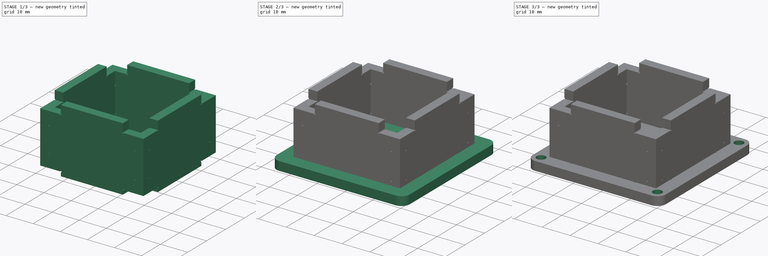
[diagram: build sequence overview — one tinted view per stage of 3, left to right]
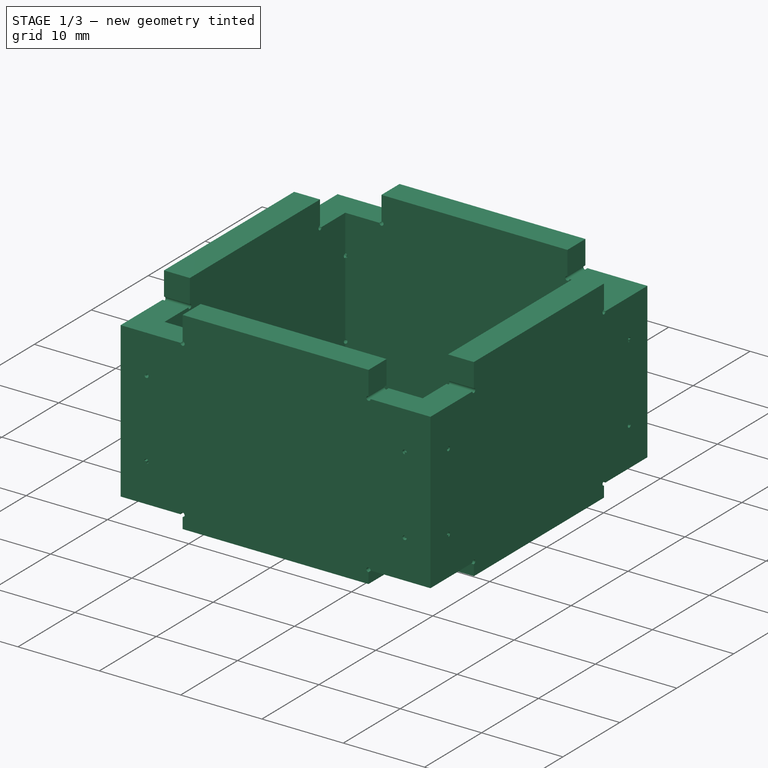
[diagram: stage 1 of 3 — iso view after this stage's code; geometry added in this stage tinted green]
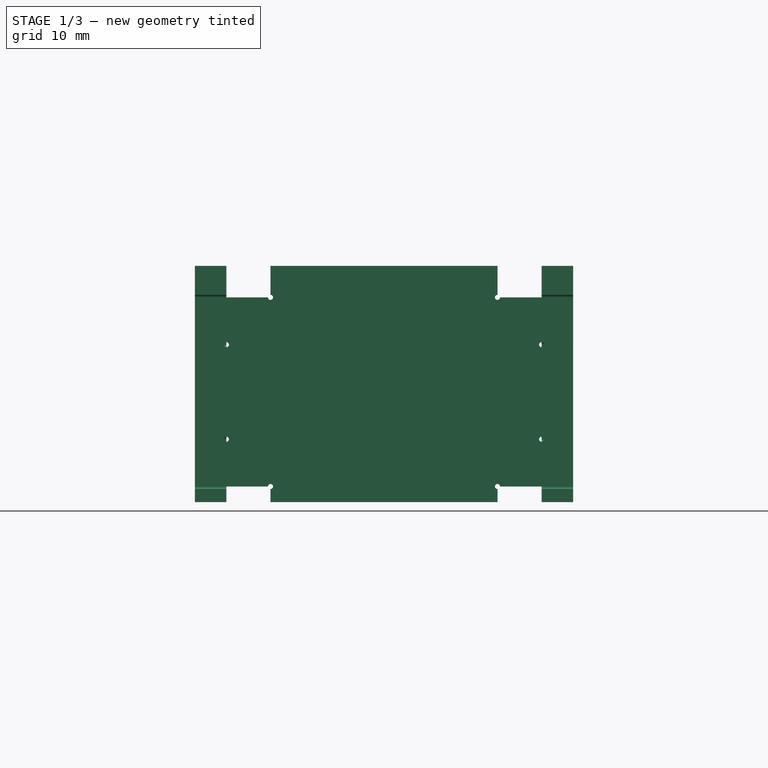
[diagram: stage 1 of 3 — front view after this stage's code; geometry added in this stage tinted green]
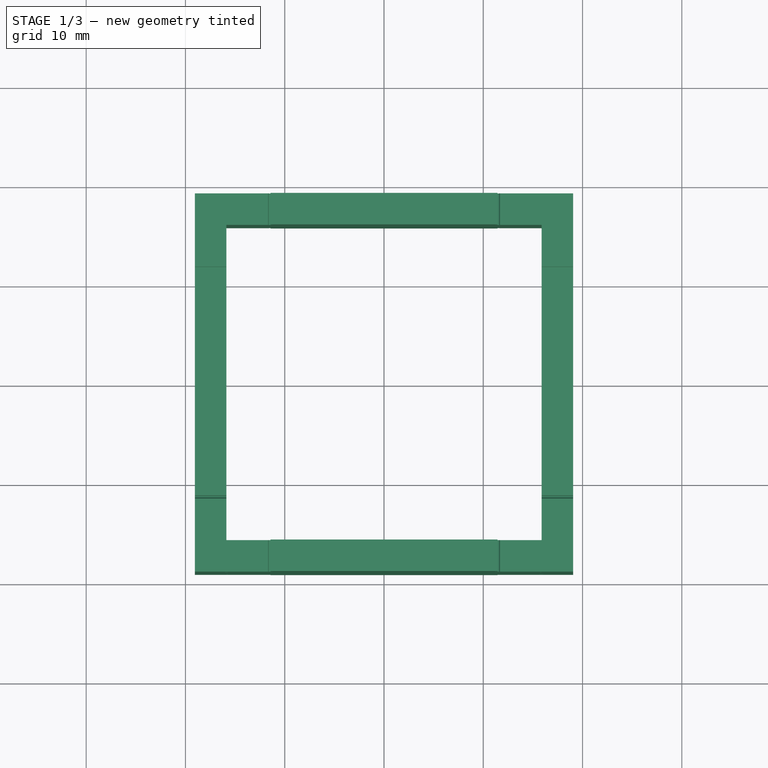
[diagram: stage 1 of 3 — top view after this stage's code; geometry added in this stage tinted green]
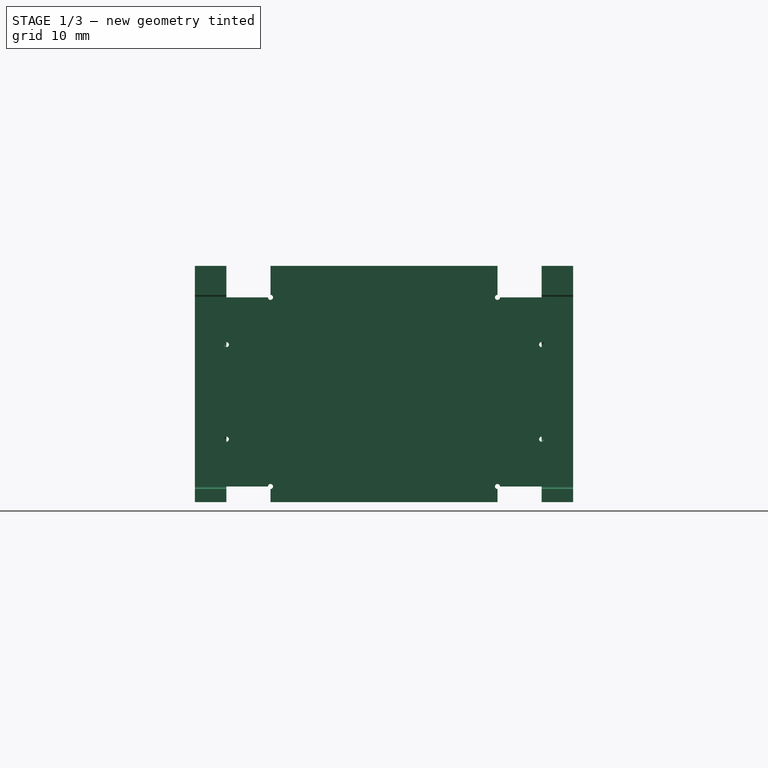
[diagram: stage 1 of 3 — right view after this stage's code; geometry added in this stage tinted green]
FCSTD DOCUMENT  (FreeCAD 1.0R38641 +468 (Git))
Label: cx210-cover-1
License: All rights reserved
objects: Sketcher::SketchObject×3, PartDesign::Pad×2, PartDesign::Body×2, Spreadsheet::Sheet×1, PartDesign::Pocket×1, PartDesign::PolarPattern×1, Part::FeaturePython×1
note: 20 computed .brp shape members not serialized (recipe doc carries the construction recipe); baked Part::Feature solids carry a one-line shape summary decoded from their .brp

FEATURE [PartDesign::Body] Body
  AllowCompound = false
  Group = -> [Sketch,Pad,Sketch001,Pocket,PolarPattern]
  Origin = -> Origin
  Placement = pos=(0,0,19.05) rot=(0,0,1;0rad)
  Tip = -> PolarPattern
  expr: .Placement.Base.z = <<Master>>.height - <<Master>>.thick
FEATURE [Sketcher::SketchObject] Sketch002
  ArcFitTolerance = 0
  AttachmentSupport = -> [XZ_Plane001]
  FullyConstrained = true
  MakeInternals = false
  MapMode = 5
  Placement = pos=(0,0,0) rot=(1,0,0;1.5708rad)
  expr: Constraints[118] = <<Master>>.tab_top
  expr: Constraints[119] = <<Master>>.box_sq
  expr: Constraints[120] = <<Master>>.thick
  expr: Constraints[121] = <<Master>>.height - <<Master>>.thick
  expr: Constraints[131] = <<Master>>.tab_side
  expr: Constraints[47] = <<Master>>.releif
  sketch-geometry (49):
    g0: LineSegment StartX=19.05 StartY=19.05 StartZ=0 EndX=11.684 EndY=19.05 EndZ=0
    g1: LineSegment StartX=-15.875 StartY=19.05 StartZ=0 EndX=-15.875 EndY=14.5415 EndZ=0
    g2: LineSegment StartX=-16.129 StartY=14.2875 StartZ=0 EndX=-19.05 EndY=14.2875 EndZ=0
    g3: LineSegment StartX=-19.05 StartY=14.2875 StartZ=0 EndX=-19.05 EndY=4.7625 EndZ=0
    g4: LineSegment StartX=-19.05 StartY=4.7625 StartZ=0 EndX=-16.129 EndY=4.7625 EndZ=0
    g5: LineSegment StartX=-15.875 StartY=4.5085 StartZ=0 EndX=-15.875 EndY=9.68e-14 EndZ=0
    g6: LineSegment StartX=11.684 StartY=9.66e-14 StartZ=0 EndX=19.05 EndY=9.66e-14 EndZ=0
    g7: LineSegment StartX=19.05 StartY=9.66e-14 StartZ=0 EndX=19.05 EndY=4.7625 EndZ=0
    g8: LineSegment StartX=19.05 StartY=4.7625 StartZ=0 EndX=16.129 EndY=4.7625 EndZ=0
    g9: LineSegment StartX=15.875 StartY=5.0165 StartZ=0 EndX=15.875 EndY=14.0335 EndZ=0
    g10: LineSegment StartX=16.129 StartY=14.2875 StartZ=0 EndX=19.05 EndY=14.2875 EndZ=0
    g11: LineSegment StartX=19.05 StartY=14.2875 StartZ=0 EndX=19.05 EndY=19.05 EndZ=0
    g12: LineSegment StartX=-11.43 StartY=-0.254 StartZ=0 EndX=-11.43 EndY=-1.5748 EndZ=0
    g13: LineSegment StartX=-11.43 StartY=-1.5748 StartZ=0 EndX=11.43 EndY=-1.5748 EndZ=0
    g14: LineSegment StartX=11.43 StartY=-1.5748 StartZ=0 EndX=11.43 EndY=-0.254 EndZ=0
    g15: LineSegment StartX=-11.43 StartY=19.304 StartZ=0 EndX=-11.43 EndY=22.225 EndZ=0
    g16: LineSegment StartX=-11.43 StartY=22.225 StartZ=0 EndX=11.43 EndY=22.225 EndZ=0
    g17: LineSegment StartX=11.43 StartY=22.225 StartZ=0 EndX=11.43 EndY=19.304 EndZ=0
    g18: LineSegment StartX=-15.875 StartY=19.05 StartZ=0 EndX=-11.684 EndY=19.05 EndZ=0
    g19: LineSegment StartX=-15.875 StartY=9.66e-14 StartZ=0 EndX=-11.684 EndY=9.66e-14 EndZ=0
    g20: ArcOfCircle CenterX=-15.875 CenterY=14.2875 CenterZ=0 NormalX=0 NormalY=0 NormalZ=1 AngleXU=0 Radius=0.254 StartAngle=3.14159 EndAngle=7.85398
    g21: ArcOfCircle CenterX=-11.43 CenterY=19.05 CenterZ=0 NormalX=0 NormalY=0 NormalZ=1 AngleXU=0 Radius=0.254 StartAngle=3.14159 EndAngle=7.85398
    g22: ArcOfCircle CenterX=11.43 CenterY=19.05 CenterZ=0 NormalX=0 NormalY=0 NormalZ=1 AngleXU=0 Radius=0.254 StartAngle=1.5708 EndAngle=6.28319
    g23: ArcOfCircle CenterX=15.875 CenterY=14.2875 CenterZ=0 NormalX=0 NormalY=0 NormalZ=1 AngleXU=0 Radius=0.254 StartAngle=0 EndAngle=4.71239
    g24: ArcOfCircle CenterX=-15.875 CenterY=4.7625 CenterZ=0 NormalX=0 NormalY=0 NormalZ=1 AngleXU=0 Radius=0.254 StartAngle=4.71239 EndAngle=9.42478
    g25: ArcOfCircle CenterX=-11.43 CenterY=9.66e-14 CenterZ=0 NormalX=0 NormalY=0 NormalZ=1 AngleXU=0 Radius=0.254 StartAngle=4.71239 EndAngle=9.42478
    g26: ArcOfCircle CenterX=15.875 CenterY=4.7625 CenterZ=0 NormalX=0 NormalY=0 NormalZ=1 AngleXU=0 Radius=0.254 StartAngle=1.5708 EndAngle=6.28319
    g27: ArcOfCircle CenterX=11.43 CenterY=9.66e-14 CenterZ=0 NormalX=0 NormalY=0 NormalZ=1 AngleXU=0 Radius=0.254 StartAngle=0 EndAngle=4.71239
    g28: LineSegment [constr] StartX=-15.875 StartY=14.2875 StartZ=0 EndX=-15.875 EndY=14.5415 EndZ=0
    g29: LineSegment [constr] StartX=-16.129 StartY=14.2875 StartZ=0 EndX=-15.875 EndY=14.2875 EndZ=0
    g30: LineSegment [constr] StartX=-11.684 StartY=19.05 StartZ=0 EndX=-11.43 EndY=19.05 EndZ=0
    g31: LineSegment [constr] StartX=-11.43 StartY=19.304 StartZ=0 EndX=-11.43 EndY=19.05 EndZ=0
    g32: LineSegment [constr] StartX=11.43 StartY=19.05 StartZ=0 EndX=11.43 EndY=19.304 EndZ=0
    g33: LineSegment [constr] StartX=11.43 StartY=19.05 StartZ=0 EndX=11.684 EndY=19.05 EndZ=0
    g34: LineSegment [constr] StartX=15.875 StartY=14.2875 StartZ=0 EndX=16.129 EndY=14.2875 EndZ=0
    g35: LineSegment [constr] StartX=15.875 StartY=5.0165 StartZ=0 EndX=15.875 EndY=4.7625 EndZ=0
    g36: LineSegment [constr] StartX=15.875 StartY=4.7625 StartZ=0 EndX=16.129 EndY=4.7625 EndZ=0
    g37: LineSegment [constr] StartX=11.43 StartY=9.66e-14 StartZ=0 EndX=11.684 EndY=9.66e-14 EndZ=0
    g38: LineSegment [constr] StartX=11.43 StartY=9.66e-14 StartZ=0 EndX=11.43 EndY=-0.254 EndZ=0
    g39: LineSegment [constr] StartX=-16.129 StartY=4.7625 StartZ=0 EndX=-15.875 EndY=4.7625 EndZ=0
    g40: LineSegment [constr] StartX=-15.875 StartY=4.7625 StartZ=0 EndX=-15.875 EndY=4.5085 EndZ=0
    g41: LineSegment [constr] StartX=-11.684 StartY=9.66e-14 StartZ=0 EndX=-11.43 EndY=9.66e-14 EndZ=0
    g42: LineSegment [constr] StartX=-11.43 StartY=9.66e-14 StartZ=0 EndX=-11.43 EndY=-0.254 EndZ=0
    g43: LineSegment [constr] StartX=-11.43 StartY=19.05 StartZ=0 EndX=11.43 EndY=19.05 EndZ=0
    g44: LineSegment [constr] StartX=-15.875 StartY=14.2875 StartZ=0 EndX=-15.875 EndY=4.7625 EndZ=0
    g45: LineSegment [constr] StartX=-15.875 StartY=4.7625 StartZ=0 EndX=15.875 EndY=4.7625 EndZ=0
    g46: LineSegment [constr] StartX=-11.43 StartY=9.66e-14 StartZ=0 EndX=11.43 EndY=9.66e-14 EndZ=0
    g47: LineSegment [constr] StartX=15.875 StartY=14.2875 StartZ=0 EndX=15.875 EndY=14.0335 EndZ=0
    g48: LineSegment [constr] StartX=-15.875 StartY=14.2875 StartZ=0 EndX=15.875 EndY=14.2875 EndZ=0
  constraints (132):
    c: Horizontal(g0)
    c: Vertical(g1)
    c: Horizontal(g2)
    c: Coincident(g2,g3)
    c: Vertical(g3)
    c: Coincident(g3,g4)
    c: Vertical(g5)
    c: Horizontal(g6)
    c: Coincident(g6,g7)
    c: Vertical(g7)
    c: Coincident(g7,g8)
    c: Horizontal(g8)
    c: Vertical(g9)
    c: Coincident(g10,g11)
    c: Coincident(g11,g0)
    c: Vertical(g11)
    c: Horizontal(g4)
    c: Horizontal(g10)
    c: Vertical(g12)
    c: Coincident(g12,g13)
    c: Coincident(g13,g14)
    c: Vertical(g14)
    c: Vertical(g15)
    c: Coincident(g15,g16)
    c: Horizontal(g16)
    c: Coincident(g16,g17)
    c: Coincident(g18,g1)
    c: Horizontal(g18)
    c: Coincident(g19,g5)
    c: Horizontal(g19)
    c: Vertical(g17)
    c: Coincident(g2,g20)
    c: Coincident(g1,g20)
    c: Coincident(g28,g1)
    c: Coincident(g20,g28)
    c: Coincident(g29,g2)
    c: Coincident(g29,g20)
    c: Horizontal(g29)
    c: Vertical(g28)
    c: Coincident(g18,g21)
    c: Coincident(g15,g21)
    c: Coincident(g30,g18)
    c: Coincident(g30,g21)
    c: Horizontal(g30)
    c: Coincident(g31,g15)
    c: Coincident(g31,g21)
    c: Vertical(g31)
    c: Radius(g20) = 0.254
    c: Equal(g20,g21)
    c: Equal(g21,g22)
    c: Equal(g22,g23)
    c: Equal(g23,g24)
    c: Equal(g24,g25)
    c: Equal(g25,g26)
    c: Equal(g26,g27)
    c: Coincident(g0,g22)
    c: Coincident(g17,g22)
    c: Coincident(g10,g23)
    c: Coincident(g8,g26)
    c: Coincident(g9,g26)
    c: Coincident(g6,g27)
    c: Coincident(g5,g24)
    c: Coincident(g4,g24)
    c: Coincident(g19,g25)
    c: Coincident(g12,g25)
    c: Coincident(g32,g22)
    c: Coincident(g32,g17)
    c: Vertical(g32)
    c: Coincident(g33,g22)
    c: Coincident(g33,g0)
    c: Horizontal(g33)
    c: Coincident(g34,g23)
    c: Coincident(g34,g10)
    c: Horizontal(g34)
    c: Coincident(g35,g9)
    c: Coincident(g35,g26)
    c: Vertical(g35)
    c: Coincident(g36,g8)
    c: Horizontal(g36)
    c: Coincident(g36,g26)
    c: Coincident(g37,g27)
    c: Coincident(g37,g6)
    c: Horizontal(g37)
    c: Coincident(g38,g27)
    c: Coincident(g38,g14)
    c: Vertical(g38)
    c: Coincident(g39,g4)
    c: Coincident(g39,g24)
    c: Horizontal(g39)
    c: Coincident(g40,g24)
    c: Coincident(g40,g5)
    c: Vertical(g40)
    c: Coincident(g41,g19)
    c: Coincident(g41,g25)
    c: Horizontal(g41)
    c: Coincident(g42,g25)
    c: Coincident(g42,g12)
    c: Vertical(g42)
    c: Coincident(g43,g21)
    c: Coincident(g43,g22)
    c: Horizontal(g43)
    c: Coincident(g44,g20)
    c: Vertical(g44)
    c: Coincident(g24,g44)
    c: Coincident(g45,g24)
    c: Coincident(g45,g26)
    c: Coincident(g46,g25)
    c: Coincident(g46,g27)
    c: Horizontal(g46)
    c: Coincident(g14,g27)
    c: Equal(g18,g19)
    c: Equal(g10,g8)
    c: Equal(g6,g0)
    c: Equal(g10,g2)
    c: Equal(g17,g10)
    c: Symmetric(g13,g12,g-2)
    c: Equal(g11,g7)
    c: PointOnObject(g-1,g46)
    c: DistanceX(g13) = 22.86
    c: DistanceX(g3,g6) = 38.1
    c: DistanceX(g3,g5) = 3.175
    c: DistanceY(g6,g0) = 19.05
    c: Symmetric(g3,g7,g-2)
    c: DistanceY(g13,g6) = 1.5748
    c: Coincident(g47,g23)
    c: Coincident(g47,g23)
    c: Vertical(g47)
    c: Coincident(g9,g23)
    c: Coincident(g48,g20)
    c: Horizontal(g48)
    c: Coincident(g48,g23)
    c: DistanceY(g3,g3) = 9.525
FEATURE [PartDesign::Pad] Pad001
  Direction = (0,-1,2e-16)
  Length = 3.175
  Length2 = 10
  Placement = pos=(0,0,0) rot=(1,0,0;1.5708rad)
  Profile = -> Sketch002
  ReferenceAxis = -> Sketch002 [N_Axis]
  Suppressed = false
  Type = 0
  expr: Length = <<Master>>.thick
FEATURE [PartDesign::Body] Body001
  AllowCompound = false
  Group = -> [Sketch002,Pad001]
  Origin = -> Origin001
  Placement = pos=(0,-15.875,0) rot=(0,0,1;0rad)
  Tip = -> Pad001
  expr: .Placement.Base.y = -(<<Master>>.box_sq / 2 - <<Master>>.thick)
FEATURE [Part::FeaturePython] Array  # Draft array (typed FeaturePython)
  Angle = 360
  ArrayType = 1
  Axis = (0,0,1)
  Base = -> Body001
  Center = (0,0,0)
  Count = 4
  Fuse = false
  IntervalAxis = (0,0,0)
  IntervalX = (50,0,0)
  IntervalY = (0,50,0)
  IntervalZ = (0,0,50)
  NumberCircles = 3
  NumberPolar = 4
  NumberX = 2
  NumberY = 2
  NumberZ = 1
  RadialDistance = 50
  Symmetry = 1
  TangentialDistance = 25
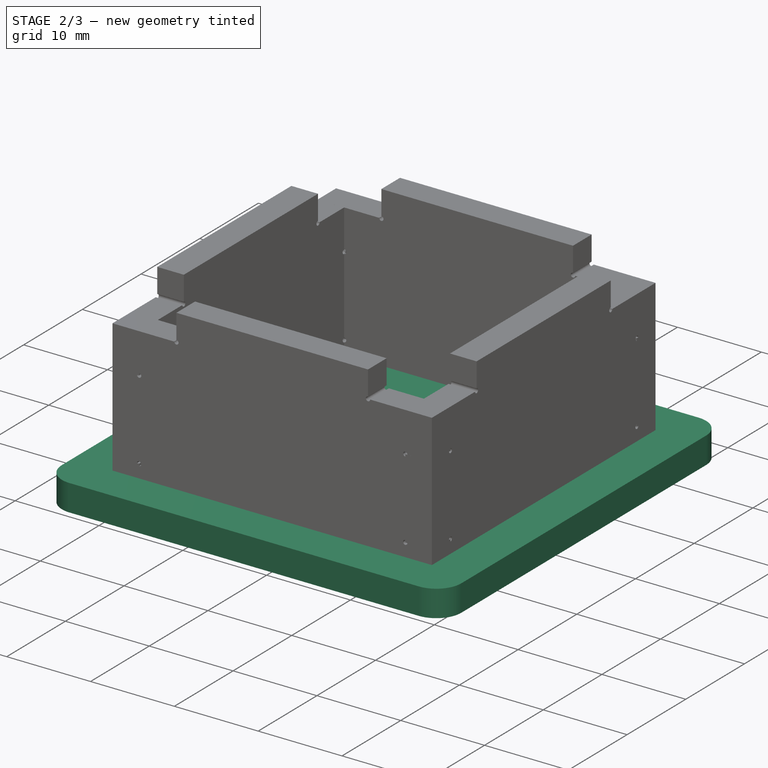
[diagram: stage 2 of 3 — iso view after this stage's code; geometry added in this stage tinted green]
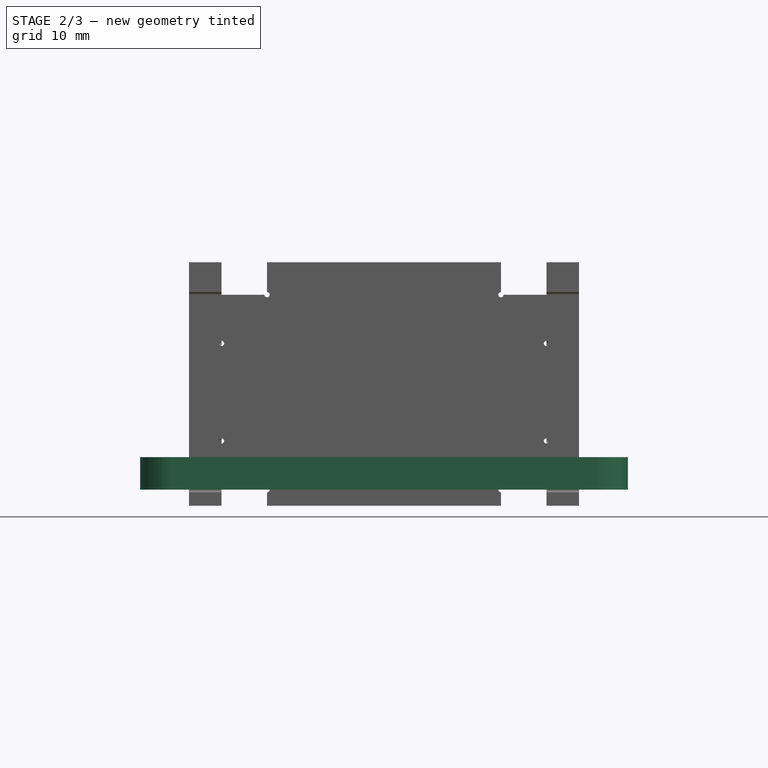
[diagram: stage 2 of 3 — front view after this stage's code; geometry added in this stage tinted green]
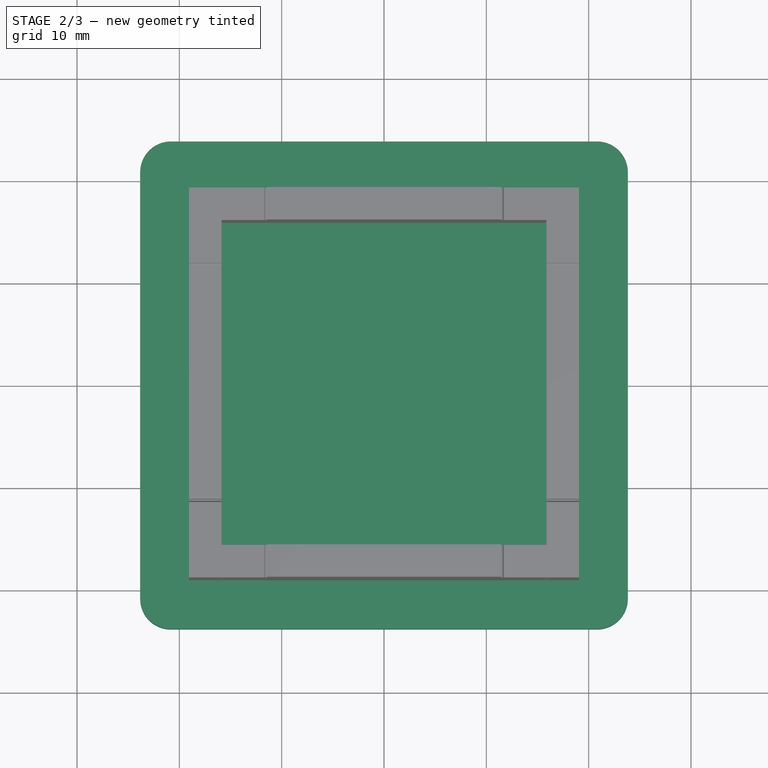
[diagram: stage 2 of 3 — top view after this stage's code; geometry added in this stage tinted green]
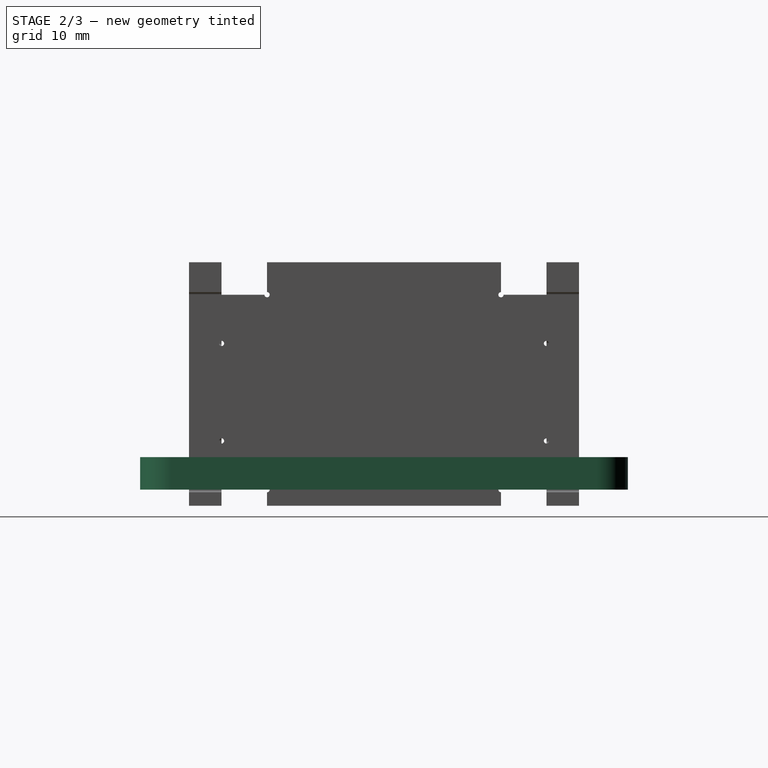
[diagram: stage 2 of 3 — right view after this stage's code; geometry added in this stage tinted green]
FEATURE [Spreadsheet::Sheet] Spreadsheet  label="Master"
  cells = A1='Constants; A2='top square; B2(top_sq)==47.656 mm; C2='Top cover square; A3='height; B3(height)==22.225 mm; C3='Height of box; A4='box square; B4(box_sq)==38.1 mm; C4='Size of box (external dim); A5='thick; B5(thick)==3.175 mm; C5='Acrylic thickness; A6='tab top; B6(tab_top)==22.86 mm; C6='Top/bottom tab length; A7='tab side; B7(tab_side)==9.525 mm; C7='Side tab length; A8='relief; B8(releif)==0.254 mm; C8='Inside corner relief radius; A9='mnt square; B9(mnt_sq)==41.656 mm; C9='Mounting hole square; A11='Calculated
FEATURE [Sketcher::SketchObject] Sketch
  ArcFitTolerance = 1e-06
  AttachmentSupport = -> [XY_Plane]
  FullyConstrained = true
  MakeInternals = false
  MapMode = 5
  expr: Constraints[22] = <<Master>>.top_sq
  sketch-geometry (10):
    g0: LineSegment StartX=-20.828 StartY=-23.828 StartZ=0 EndX=20.828 EndY=-23.828 EndZ=0
    g1: LineSegment StartX=23.828 StartY=-20.828 StartZ=0 EndX=23.828 EndY=20.828 EndZ=0
    g2: LineSegment StartX=20.828 StartY=23.828 StartZ=0 EndX=-20.828 EndY=23.828 EndZ=0
    g3: LineSegment StartX=-23.828 StartY=20.828 StartZ=0 EndX=-23.828 EndY=-20.828 EndZ=0
    g4: ArcOfCircle CenterX=-20.828 CenterY=-20.828 CenterZ=0 NormalX=0 NormalY=0 NormalZ=1 AngleXU=0 Radius=3 StartAngle=3.14159 EndAngle=4.71239
    g5: ArcOfCircle CenterX=20.828 CenterY=-20.828 CenterZ=0 NormalX=0 NormalY=0 NormalZ=1 AngleXU=0 Radius=3 StartAngle=4.71239 EndAngle=6.28319
    g6: ArcOfCircle CenterX=20.828 CenterY=20.828 CenterZ=0 NormalX=0 NormalY=0 NormalZ=1 AngleXU=0 Radius=3 StartAngle=0 EndAngle=1.5708
    g7: ArcOfCircle CenterX=-20.828 CenterY=20.828 CenterZ=0 NormalX=0 NormalY=0 NormalZ=1 AngleXU=0 Radius=3 StartAngle=1.5708 EndAngle=3.14159
    g8: GeomPoint [constr] X=-23.828 Y=-23.828 Z=0
    g9: GeomPoint [constr] X=23.828 Y=23.828 Z=0
  constraints (23):
    c: Tangent(g0,g4) = -1.5708
    c: Tangent(g0,g5) = -1.5708
    c: Tangent(g1,g5) = -1.5708
    c: Tangent(g1,g6) = -1.5708
    c: Tangent(g2,g6) = -1.5708
    c: Tangent(g2,g7) = -1.5708
    c: Tangent(g3,g7) = -1.5708
    c: Tangent(g3,g4) = -1.5708
    c: Horizontal(g0)
    c: Horizontal(g2)
    c: Vertical(g1)
    c: Vertical(g3)
    c: Equal(g4,g5)
    c: Equal(g5,g6)
    c: Equal(g6,g7)
    c: PointOnObject(g8,g0)
    c: PointOnObject(g8,g3)
    c: PointOnObject(g9,g1)
    c: PointOnObject(g9,g2)
    c: Radius(g5) = 3
    c: Symmetric(g4,g6,g-1)
    c: Equal(g2,g1)
    c: DistanceX(g3,g1) = 47.656
FEATURE [PartDesign::Pad] Pad
  Direction = (0,0,1)
  Length = 3.175
  Length2 = 10
  Profile = -> Sketch
  ReferenceAxis = -> Sketch [N_Axis]
  Suppressed = false
  Type = 0
  expr: Length = <<Master>>.thick
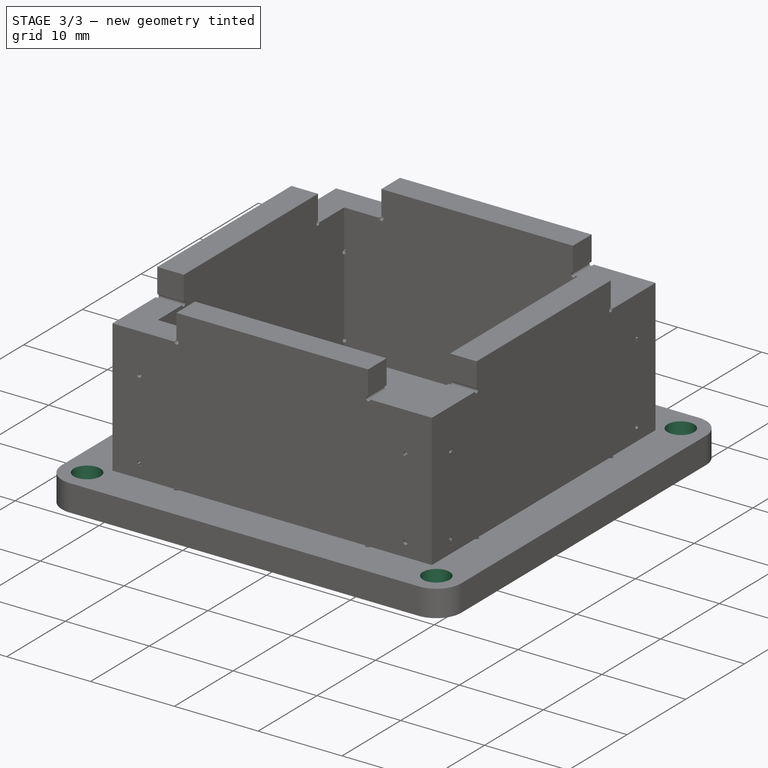
[diagram: stage 3 of 3 — iso view after this stage's code; geometry added in this stage tinted green]
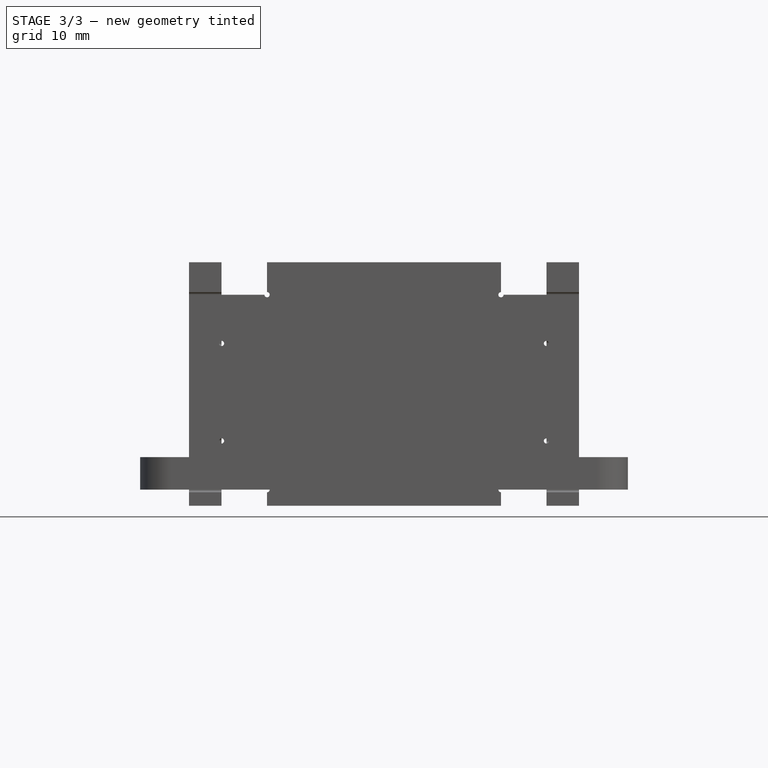
[diagram: stage 3 of 3 — front view after this stage's code; geometry added in this stage tinted green]
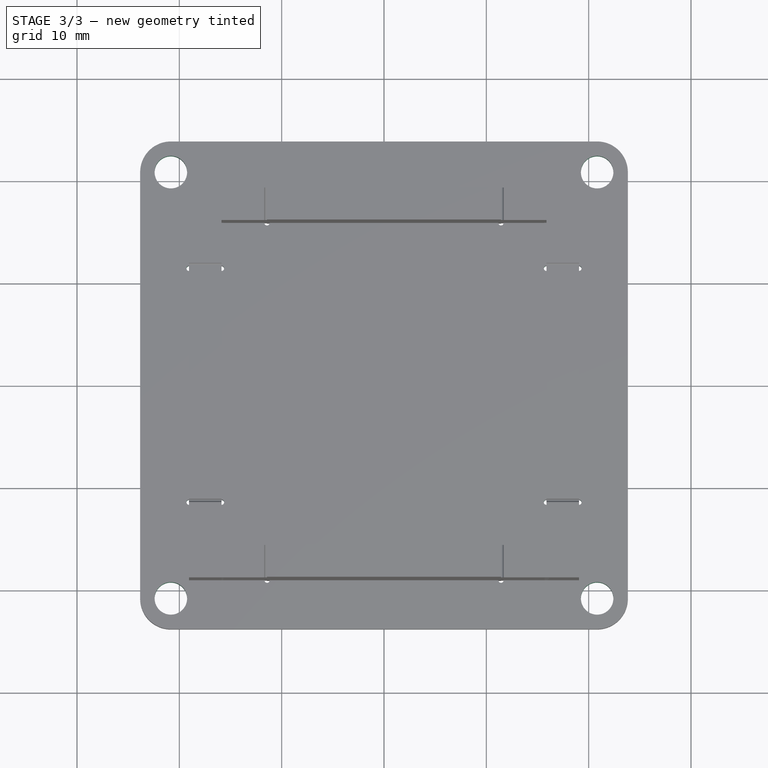
[diagram: stage 3 of 3 — top view after this stage's code; geometry added in this stage tinted green]
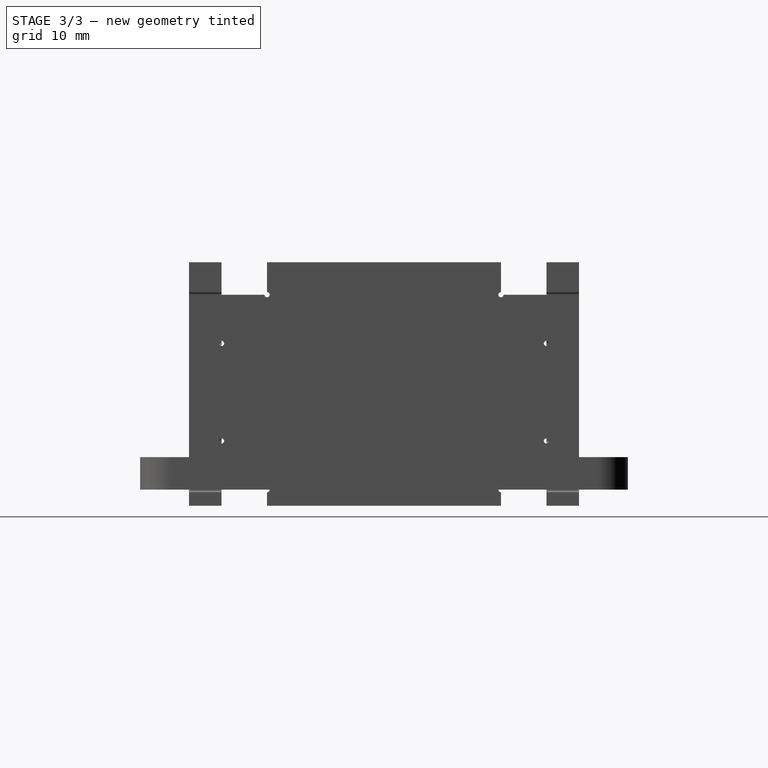
[diagram: stage 3 of 3 — right view after this stage's code; geometry added in this stage tinted green]
FEATURE [Sketcher::SketchObject] Sketch001
  ArcFitTolerance = 1e-06
  AttachmentSupport = -> [XY_Plane]
  FullyConstrained = true
  MakeInternals = false
  MapMode = 5
  expr: Constraints[38] = <<Master>>.releif
  expr: Constraints[39] = <<Master>>.thick
  expr: Constraints[41] = <<Master>>.box_sq / 2
  expr: Constraints[42] = <<Master>>.tab_top
  expr: Constraints[44] = <<Master>>.mnt_sq / 2
  expr: Constraints[45] = <<Master>>.mnt_sq / 2
  sketch-geometry (17):
    g0: Circle CenterX=-20.828 CenterY=-20.828 CenterZ=0 NormalX=0 NormalY=0 NormalZ=1 AngleXU=0 Radius=1.5875
    g1: LineSegment StartX=-19.05 StartY=11.176 StartZ=0 EndX=-19.05 EndY=-11.176 EndZ=0
    g2: LineSegment StartX=-18.796 StartY=11.43 StartZ=0 EndX=-16.129 EndY=11.43 EndZ=0
    g3: LineSegment StartX=-15.875 StartY=11.176 StartZ=0 EndX=-15.875 EndY=-11.176 EndZ=0
    g4: LineSegment StartX=-16.129 StartY=-11.43 StartZ=0 EndX=-18.796 EndY=-11.43 EndZ=0
    g5: ArcOfCircle CenterX=-19.05 CenterY=11.43 CenterZ=0 NormalX=0 NormalY=0 NormalZ=1 AngleXU=0 Radius=0.254 StartAngle=0 EndAngle=4.71239
    g6: ArcOfCircle CenterX=-15.875 CenterY=11.43 CenterZ=0 NormalX=0 NormalY=0 NormalZ=1 AngleXU=0 Radius=0.254 StartAngle=4.71239 EndAngle=9.42478
    g7: ArcOfCircle CenterX=-15.875 CenterY=-11.43 CenterZ=0 NormalX=0 NormalY=0 NormalZ=1 AngleXU=0 Radius=0.254 StartAngle=3.14159 EndAngle=7.85398
    g8: ArcOfCircle CenterX=-19.05 CenterY=-11.43 CenterZ=0 NormalX=0 NormalY=0 NormalZ=1 AngleXU=0 Radius=0.254 StartAngle=1.5708 EndAngle=6.28319
    g9: LineSegment [constr] StartX=-19.05 StartY=11.43 StartZ=0 EndX=-19.05 EndY=11.176 EndZ=0
    g10: LineSegment [constr] StartX=-19.05 StartY=11.43 StartZ=0 EndX=-18.796 EndY=11.43 EndZ=0
    g11: LineSegment [constr] StartX=-16.129 StartY=11.43 StartZ=0 EndX=-15.875 EndY=11.43 EndZ=0
    g12: LineSegment [constr] StartX=-15.875 StartY=11.176 StartZ=0 EndX=-15.875 EndY=11.43 EndZ=0
    g13: LineSegment [constr] StartX=-19.05 StartY=-11.176 StartZ=0 EndX=-19.05 EndY=-11.43 EndZ=0
    g14: LineSegment [constr] StartX=-18.796 StartY=-11.43 StartZ=0 EndX=-19.05 EndY=-11.43 EndZ=0
    g15: LineSegment [constr] StartX=-16.129 StartY=-11.43 StartZ=0 EndX=-15.875 EndY=-11.43 EndZ=0
    g16: LineSegment [constr] StartX=-15.875 StartY=-11.43 StartZ=0 EndX=-15.875 EndY=-11.176 EndZ=0
  constraints (46):
    c: Vertical(g1)
    c: Horizontal(g2)
    c: Horizontal(g4)
    c: Coincident(g8,g1)
    c: Coincident(g8,g4)
    c: Coincident(g4,g7)
    c: Coincident(g7,g3)
    c: Coincident(g6,g3)
    c: Coincident(g2,g6)
    c: Coincident(g2,g5)
    c: Coincident(g5,g1)
    c: Equal(g5,g6)
    c: Equal(g6,g8)
    c: Equal(g8,g7)
    c: Coincident(g9,g5)
    c: Coincident(g9,g1)
    c: Coincident(g10,g5)
    c: Coincident(g10,g2)
    c: Coincident(g11,g2)
    c: Coincident(g11,g6)
    c: Coincident(g12,g3)
    c: Coincident(g12,g6)
    c: Coincident(g13,g1)
    c: Coincident(g13,g8)
    c: Coincident(g14,g4)
    c: Coincident(g14,g8)
    c: Coincident(g15,g4)
    c: Coincident(g15,g7)
    c: Coincident(g16,g7)
    c: Coincident(g16,g3)
    c: Vertical(g13)
    c: Horizontal(g14)
    c: Horizontal(g15)
    c: Vertical(g16)
    c: Horizontal(g10)
    c: Vertical(g9)
    c: Horizontal(g11)
    c: Vertical(g12)
    c: Radius(g5) = 0.254
    c: DistanceX(g5,g6) = 3.175
    c: Symmetric(g3,g3,g-1)
    c: DistanceX(g5,g-1) = 19.05
    c: DistanceY(g7,g6) = 22.86
    c: Radius(g0) = 1.5875
    c: DistanceX(g0,g-1) = 20.828
    c: DistanceY(g0,g-1) = 20.828
FEATURE [PartDesign::Pocket] Pocket
  BaseFeature = -> Pad
  Direction = (0,0,-1)
  Length = 5
  Length2 = 5
  Profile = -> Sketch001
  ReferenceAxis = -> Sketch001 [N_Axis]
  Reversed = true
  Suppressed = false
  Type = 1
FEATURE [PartDesign::PolarPattern] PolarPattern
  Angle = 360
  Axis = -> Sketch001 [N_Axis]
  BaseFeature = -> Pocket
  Mode = 0
  Occurrences = 4
  Offset = 120
  Originals = -> [Pocket]
  Suppressed = false
  TransformMode = 0
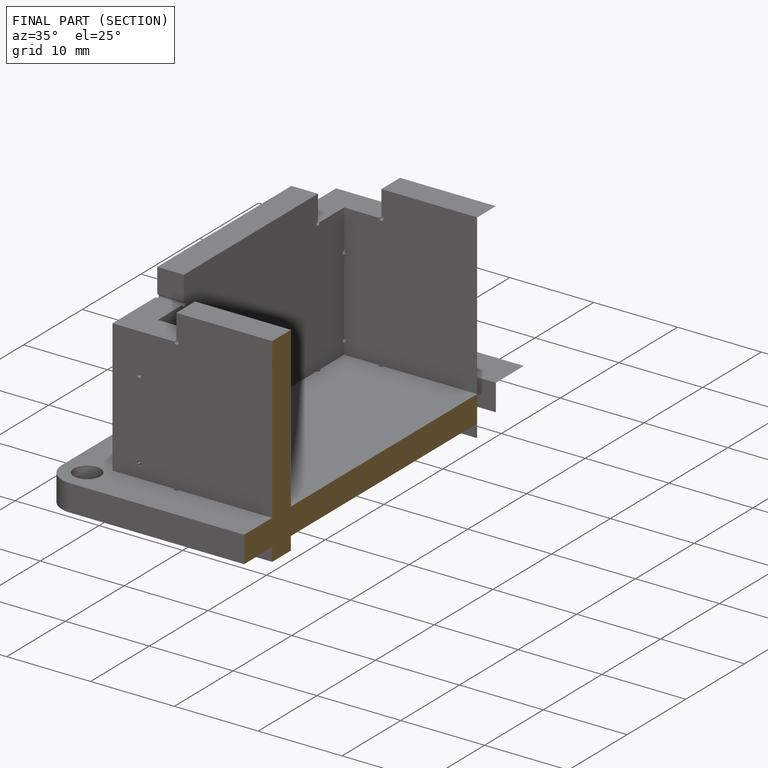
[diagram: finished part — half-section view (interior)]
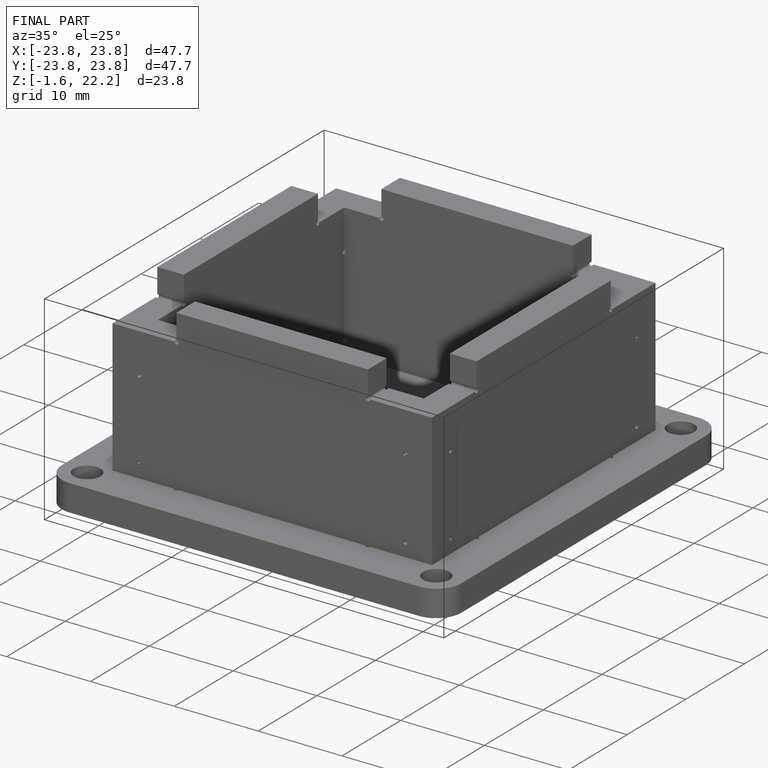
[diagram: finished part — iso view with bounding-box wireframe]
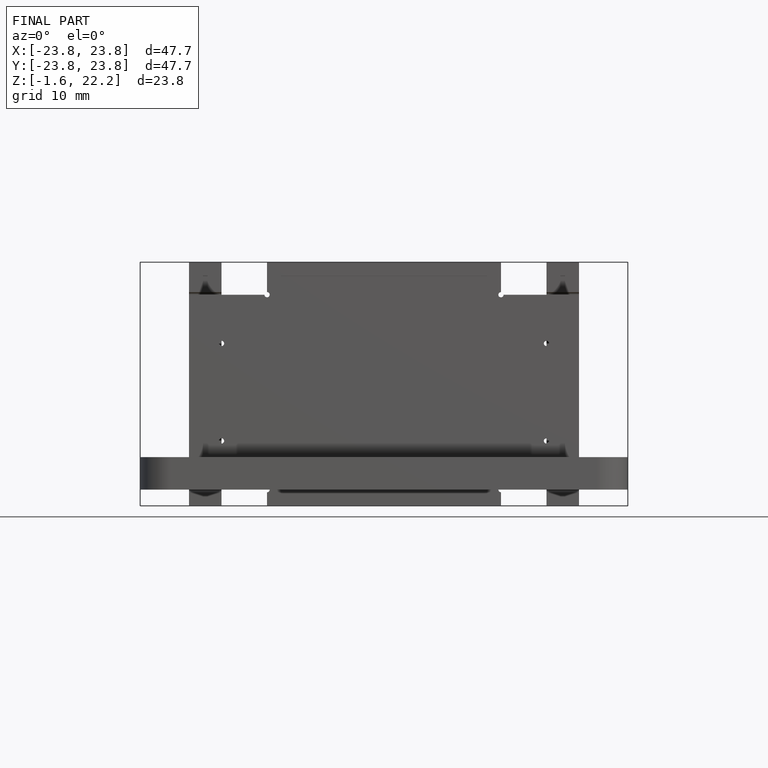
[diagram: finished part — front view with bounding-box wireframe]
